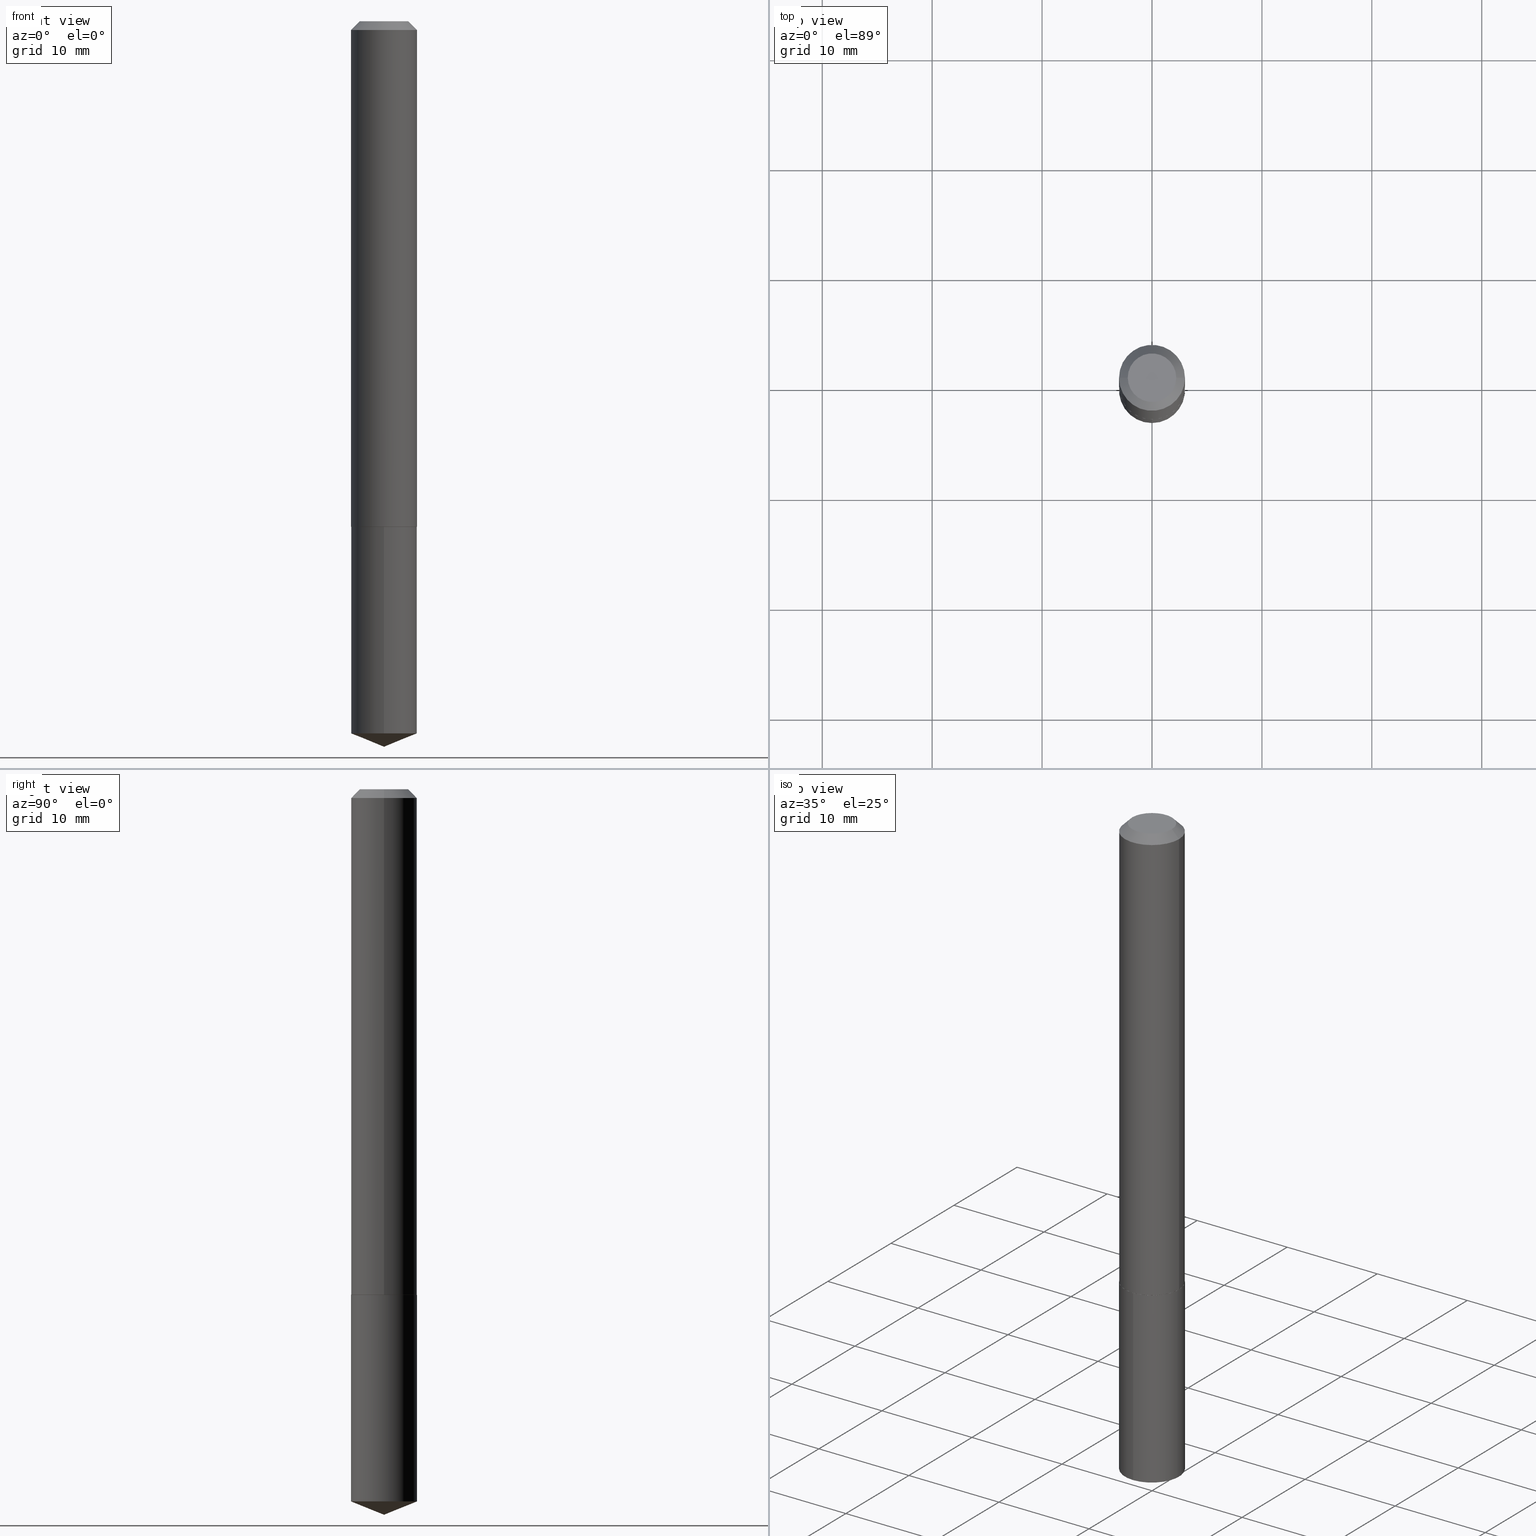
[diagram: canonical four-view strip — front | top / right | iso, engineering-drawing reading convention]
A machine part, canonical four-view strip (front | top / right | iso — engineering-drawing reading convention). The complete STEP part file that produces these views, byte-faithful:
ISO-10303-21;
HEADER;
FILE_DESCRIPTION (( 'STEP AP203' ),
    '1' );
FILE_NAME ('69150.STEP',
    '2024-04-23T14:45:25',
    ( '' ),
    ( '' ),
    'SwSTEP 2.0',
    'SolidWorks 2023',
    '' );
FILE_SCHEMA (( 'CONFIG_CONTROL_DESIGN' ));
ENDSEC;

DATA;
#1 = CARTESIAN_POINT ( 'NONE',  ( -0.1181000000000001215, 8.391509709326791832E-16, -5.809262341591049389E-30 ) ) ;
#2 = ORIENTED_EDGE ( 'NONE', *, *, #49, .T. ) ;
#3 = LOCAL_TIME ( 10, 45, 25.00000000000000000, #340 ) ;
#4 = APPLICATION_PROTOCOL_DEFINITION ( 'international standard', 'config_control_design', 1994, #110 ) ;
#5 = CARTESIAN_POINT ( 'NONE',  ( 6.317120417036399329E-29, -9.125517191193927312E-15, -2.598399999999999821 ) ) ;
#6 = ORIENTED_EDGE ( 'NONE', *, *, #22, .T. ) ;
#7 = CALENDAR_DATE ( 2024, 23, 4 ) ;
#8 = CARTESIAN_POINT ( 'NONE',  ( 6.317120417036399329E-29, -9.125517191193927312E-15, -2.598399999999999821 ) ) ;
#9 = CARTESIAN_POINT ( 'NONE',  ( 8.391509709327404185E-16, 0.1180999999999910732, -2.550684502728868264 ) ) ;
#10 = CARTESIAN_POINT ( 'NONE',  ( 0.1181000000000002326, -7.146014856210262754E-15, -1.810499999999999776 ) ) ;
#11 = CIRCLE ( 'NONE', #382, 0.1180999999999999966 ) ;
#12 = CARTESIAN_POINT ( 'NONE',  ( 4.427521273598188876E-29, -6.321326963975513703E-15, -1.810499999999999776 ) ) ;
#13 = DIRECTION ( 'NONE',  ( -0.7071067811865455743, 2.468850131082236945E-15, -0.7071067811865493491 ) ) ;
#14 = CARTESIAN_POINT ( 'NONE',  ( 4.428744008001282238E-29, -6.323072704644935995E-15, -1.810999999999999943 ) ) ;
#15 = FACE_OUTER_BOUND ( 'NONE', #241, .T. ) ;
#16 = ADVANCED_FACE ( 'NONE', ( #330 ), #78, .T. ) ;
#17 = DIRECTION ( 'NONE',  ( -1.000000000000000000, 6.982962677686266711E-15, 0.000000000000000000 ) ) ;
#18 = APPROVAL_PERSON_ORGANIZATION ( #92, #141, #308 ) ;
#19 = VECTOR ( 'NONE', #218, 39.37007874015748143 ) ;
#20 = ORIENTED_EDGE ( 'NONE', *, *, #208, .T. ) ;
#21 = CC_DESIGN_APPROVAL ( #25, ( #379 ) ) ;
#22 = EDGE_CURVE ( 'NONE', #328, #388, #305, .T. ) ;
#23 = EDGE_LOOP ( 'NONE', ( #207, #381, #151, #290 ) ) ;
#24 = AXIS2_PLACEMENT_3D ( 'NONE', #344, #278, #316 ) ;
#25 = APPROVAL ( #209, 'UNSPECIFIED' ) ;
#26 = FACE_OUTER_BOUND ( 'NONE', #125, .T. ) ;
#27 = VERTEX_POINT ( 'NONE', #9 ) ;
#28 = PERSON_AND_ORGANIZATION ( #350, #74 ) ;
#29 = DIRECTION ( 'NONE',  ( -6.982962677686266711E-15, -1.000000000000000000, 3.498761904101851224E-15 ) ) ;
#30 = VERTEX_POINT ( 'NONE', #127 ) ;
#31 = DATE_AND_TIME ( #115, #137 ) ;
#32 = DIRECTION ( 'NONE',  ( -2.445468806185136597E-29, 3.491481338843145583E-15, 1.000000000000000000 ) ) ;
#33 = EDGE_LOOP ( 'NONE', ( #170, #97, #112, #302 ) ) ;
#34 = CIRCLE ( 'NONE', #57, 0.1181000000000000105 ) ;
#35 = COORDINATED_UNIVERSAL_TIME_OFFSET ( 5, 0, .BEHIND. ) ;
#36 = CYLINDRICAL_SURFACE ( 'NONE', #338, 0.1180999999999999966 ) ;
#37 = ORIENTED_EDGE ( 'NONE', *, *, #319, .T. ) ;
#38 = LINE ( 'NONE', #104, #140 ) ;
#39 = DIRECTION ( 'NONE',  ( 1.000000000000000000, -6.982962677686266711E-15, 4.875959881687004012E-29 ) ) ;
#40 = CYLINDRICAL_SURFACE ( 'NONE', #336, 0.1181000000000001215 ) ;
#41 = DATE_AND_TIME ( #317, #3 ) ;
#42 = AXIS2_PLACEMENT_3D ( 'NONE', #120, #233, #116 ) ;
#43 = DIRECTION ( 'NONE',  ( -2.445468806185136597E-29, 3.491481338843145583E-15, 1.000000000000000000 ) ) ;
#44 = DIRECTION ( 'NONE',  ( -6.982962677686265922E-15, -1.000000000000000000, 4.626330217890369336E-15 ) ) ;
#45 = DIRECTION ( 'NONE',  ( -2.445468806185136597E-29, 3.491481338843145583E-15, 1.000000000000000000 ) ) ;
#46 = CIRCLE ( 'NONE', #181, 0.1176000000000002738 ) ;
#47 = ORIENTED_EDGE ( 'NONE', *, *, #319, .F. ) ;
#48 = ADVANCED_FACE ( 'NONE', ( #103 ), #220, .F. ) ;
#49 = EDGE_CURVE ( 'NONE', #259, #27, #224, .T. ) ;
#50 = CIRCLE ( 'NONE', #195, 0.1176000000000002738 ) ;
#51 = CONICAL_SURFACE ( 'NONE', #286, 0.1181000000000002326, 0.7853981633972434429 ) ;
#52 = DIRECTION ( 'NONE',  ( -2.445468806185136597E-29, 3.491481338843145583E-15, 1.000000000000000000 ) ) ;
#53 = EDGE_LOOP ( 'NONE', ( #260, #198 ) ) ;
#54 = SECURITY_CLASSIFICATION_LEVEL ( 'unclassified' ) ;
#55 = EDGE_LOOP ( 'NONE', ( #94, #91, #109, #47 ) ) ;
#56 = AXIS2_PLACEMENT_3D ( 'NONE', #76, #187, #17 ) ;
#57 = AXIS2_PLACEMENT_3D ( 'NONE', #150, #332, #239 ) ;
#58 = MANIFOLD_SOLID_BREP ( 'Body-Move/Copy2[2]', #247 ) ;
#59 = EDGE_CURVE ( 'NONE', #388, #366, #238, .T. ) ;
#60 = PERSON_AND_ORGANIZATION ( #350, #74 ) ;
#61 = DIRECTION ( 'NONE',  ( -2.431157795965363335E-29, 3.511975520009978246E-15, 1.000000000000000000 ) ) ;
#62 = ORIENTED_EDGE ( 'NONE', *, *, #313, .T. ) ;
#63 = CARTESIAN_POINT ( 'NONE',  ( 8.253766764526101525E-46, -1.178419146489205654E-31, -3.375126578450104991E-17 ) ) ;
#64 = CARTESIAN_POINT ( 'NONE',  ( 4.427521273598188876E-29, -6.321326963975513703E-15, -1.810499999999999776 ) ) ;
#65 = DIRECTION ( 'NONE',  ( 1.000000000000000000, -6.982962677686266711E-15, 0.000000000000000000 ) ) ;
#66 = ORIENTED_EDGE ( 'NONE', *, *, #111, .F. ) ;
#67 = COORDINATED_UNIVERSAL_TIME_OFFSET ( 5, 0, .BEHIND. ) ;
#68 = LENGTH_MEASURE_WITH_UNIT ( LENGTH_MEASURE( 0.02539999999999999897 ), #219 );
#69 = EDGE_CURVE ( 'NONE', #119, #294, #345, .T. ) ;
#70 = LINE ( 'NONE', #221, #154 ) ;
#71 = ADVANCED_FACE ( 'NONE', ( #315 ), #222, .F. ) ;
#72 = CARTESIAN_POINT ( 'NONE',  ( -0.1180999999999999966, -2.376066906974500838E-15, -0.03125000000000021511 ) ) ;
#73 = DIRECTION ( 'NONE',  ( 1.000000000000000000, -6.982962677686266711E-15, 0.000000000000000000 ) ) ;
#74 = ORGANIZATION ( 'UNSPECIFIED', 'UNSPECIFIED', '' ) ;
#75 = CARTESIAN_POINT ( 'NONE',  ( 7.642090019328603538E-31, -1.091087918388490390E-16, -0.03125000000000021511 ) ) ;
#76 = CARTESIAN_POINT ( 'NONE',  ( 7.642090019328603538E-31, -1.091087918388490390E-16, -0.03125000000000021511 ) ) ;
#77 = CARTESIAN_POINT ( 'NONE',  ( -0.1180999999999999966, 7.155791003958990633E-16, -0.03125000000000021511 ) ) ;
#78 = CONICAL_SURFACE ( 'NONE', #295, 0.1181000000000002326, 0.7853981633972434429 ) ;
#79 = ADVANCED_FACE ( 'NONE', ( #342 ), #226, .T. ) ;
#80 = AXIS2_PLACEMENT_3D ( 'NONE', #143, #61, #265 ) ;
#81 = DIRECTION ( 'NONE',  ( 1.000000000000000000, -6.982962677686266711E-15, 4.876176775795935793E-29 ) ) ;
#82 = DIRECTION ( 'NONE',  ( 1.000000000000000000, 0.000000000000000000, 0.000000000000000000 ) ) ;
#83 = DIRECTION ( 'NONE',  ( 1.000000000000000000, -6.982962677686269077E-15, 0.000000000000000000 ) ) ;
#84 = ORIENTED_EDGE ( 'NONE', *, *, #194, .T. ) ;
#85 = APPROVAL_STATUS ( 'not_yet_approved' ) ;
#86 = CYLINDRICAL_SURFACE ( 'NONE', #42, 0.1180999999999999966 ) ;
#87 = ORIENTED_EDGE ( 'NONE', *, *, #59, .T. ) ;
#88 = AXIS2_PLACEMENT_3D ( 'NONE', #63, #43, #39 ) ;
#89 = PERSON_AND_ORGANIZATION_ROLE ( 'design_owner' ) ;
#90 = DIRECTION ( 'NONE',  ( -2.431157795965363335E-29, 3.511975520009978246E-15, 1.000000000000000000 ) ) ;
#91 = ORIENTED_EDGE ( 'NONE', *, *, #148, .T. ) ;
#92 = PERSON_AND_ORGANIZATION ( #350, #74 ) ;
#93 = FACE_OUTER_BOUND ( 'NONE', #23, .T. ) ;
#94 = ORIENTED_EDGE ( 'NONE', *, *, #374, .T. ) ;
#95 = LINE ( 'NONE', #77, #371 ) ;
#96 = ADVANCED_FACE ( 'NONE', ( #190 ), #40, .T. ) ;
#97 = ORIENTED_EDGE ( 'NONE', *, *, #208, .F. ) ;
#98 = EDGE_CURVE ( 'NONE', #30, #366, #389, .T. ) ;
#99 = LOCAL_TIME ( 10, 45, 25.00000000000000000, #35 ) ;
#100 =( NAMED_UNIT ( * ) PLANE_ANGLE_UNIT ( ) SI_UNIT ( $, .RADIAN. ) );
#101 = CARTESIAN_POINT ( 'NONE',  ( 6.369409423247695454E-29, -9.051287267007661357E-15, -2.598399999999999821 ) ) ;
#102 = CARTESIAN_POINT ( 'NONE',  ( 8.391509709327224719E-16, 0.1180999999999936823, -1.811000000000000387 ) ) ;
#103 = FACE_OUTER_BOUND ( 'NONE', #269, .T. ) ;
#104 = CARTESIAN_POINT ( 'NONE',  ( 0.1181000000000001215, -8.246878922347489529E-16, 5.758764772215006046E-30 ) ) ;
#105 = DIRECTION ( 'NONE',  ( 1.000000000000000000, -6.982962677686266711E-15, 0.000000000000000000 ) ) ;
#106 = CIRCLE ( 'NONE', #88, 0.08684999999999999665 ) ;
#107 = EDGE_CURVE ( 'NONE', #328, #30, #46, .T. ) ;
#108 = VECTOR ( 'NONE', #118, 39.37007874015748143 ) ;
#109 = ORIENTED_EDGE ( 'NONE', *, *, #69, .F. ) ;
#110 = APPLICATION_CONTEXT ( 'configuration controlled 3d designs of mechanical parts and assemblies' ) ;
#111 = EDGE_CURVE ( 'NONE', #259, #292, #271, .T. ) ;
#112 = ORIENTED_EDGE ( 'NONE', *, *, #268, .T. ) ;
#113 = CC_DESIGN_PERSON_AND_ORGANIZATION_ASSIGNMENT ( #156, #298, ( #172 ) ) ;
#114 = CARTESIAN_POINT ( 'NONE',  ( 7.642090019328603538E-31, -1.091087918388490390E-16, -0.03125000000000021511 ) ) ;
#115 = CALENDAR_DATE ( 2024, 23, 4 ) ;
#116 = DIRECTION ( 'NONE',  ( -6.982962677686265922E-15, -1.000000000000000000, 4.626330217890369336E-15 ) ) ;
#117 = VERTEX_POINT ( 'NONE', #267 ) ;
#118 = DIRECTION ( 'NONE',  ( -6.474490251793173107E-15, -0.9271838545667855369, 0.3746065934159166777 ) ) ;
#119 = VERTEX_POINT ( 'NONE', #329 ) ;
#120 = CARTESIAN_POINT ( 'NONE',  ( 4.428744008001282238E-29, -6.323072704644935995E-15, -1.810999999999999943 ) ) ;
#121 = ORIENTED_EDGE ( 'NONE', *, *, #107, .T. ) ;
#122 = AXIS2_PLACEMENT_3D ( 'NONE', #343, #281, #105 ) ;
#123 = SECURITY_CLASSIFICATION ( '', '', #54 ) ;
#124 = DIRECTION ( 'NONE',  ( -2.445468806185136597E-29, 3.491481338843145583E-15, 1.000000000000000000 ) ) ;
#125 = EDGE_LOOP ( 'NONE', ( #370, #6, #246, #270 ) ) ;
#126 = CARTESIAN_POINT ( 'NONE',  ( 4.428744008001282238E-29, -6.323072704644935995E-15, -1.810999999999999943 ) ) ;
#127 = CARTESIAN_POINT ( 'NONE',  ( 0.1176000000000002738, -7.144269115540843617E-15, -1.810999999999999943 ) ) ;
#128 = DIRECTION ( 'NONE',  ( 1.000000000000000000, -6.982962677686266711E-15, 0.000000000000000000 ) ) ;
#129 = AXIS2_PLACEMENT_3D ( 'NONE', #133, #45, #73 ) ;
#130 = APPROVAL_PERSON_ORGANIZATION ( #60, #25, #214 ) ;
#131 = LINE ( 'NONE', #102, #258 ) ;
#132 = DIRECTION ( 'NONE',  ( -6.982962677686266711E-15, -1.000000000000000000, 3.498761904101851224E-15 ) ) ;
#133 = CARTESIAN_POINT ( 'NONE',  ( 7.642090019328603538E-31, -1.091087918388490390E-16, -0.03125000000000021511 ) ) ;
#134 = CARTESIAN_POINT ( 'NONE',  ( -8.937183620035965919E-28, 1.291783505271975782E-13, 36.77167874015748339 ) ) ;
#135 = ADVANCED_BREP_SHAPE_REPRESENTATION ( '69150', ( #184, #58, #216 ), #254 ) ;
#136 = AXIS2_PLACEMENT_3D ( 'NONE', #14, #284, #346 ) ;
#137 = LOCAL_TIME ( 10, 45, 25.00000000000000000, #335 ) ;
#138 = EDGE_CURVE ( 'NONE', #30, #328, #50, .T. ) ;
#139 = ADVANCED_FACE ( 'NONE', ( #243 ), #384, .T. ) ;
#140 = VECTOR ( 'NONE', #160, 39.37007874015748143 ) ;
#141 = APPROVAL ( #85, 'UNSPECIFIED' ) ;
#142 = DATE_AND_TIME ( #204, #272 ) ;
#143 = CARTESIAN_POINT ( 'NONE',  ( 6.227033753365331904E-29, -8.920826570759473542E-15, -2.550684502728867376 ) ) ;
#144 = CONICAL_SURFACE ( 'NONE', #223, 97.44436430772776703, 1.186823891356142635 ) ;
#145 = VERTEX_POINT ( 'NONE', #323 ) ;
#146 = CARTESIAN_POINT ( 'NONE',  ( 0.000000000000000000, 0.000000000000000000, 0.000000000000000000 ) ) ;
#147 = ORIENTED_EDGE ( 'NONE', *, *, #98, .T. ) ;
#148 = EDGE_CURVE ( 'NONE', #388, #294, #365, .T. ) ;
#149 = DATE_AND_TIME ( #7, #99 ) ;
#150 = CARTESIAN_POINT ( 'NONE',  ( 6.227033753365331904E-29, -8.920826570759473542E-15, -2.550684502728867376 ) ) ;
#151 = ORIENTED_EDGE ( 'NONE', *, *, #261, .F. ) ;
#152 = PERSON_AND_ORGANIZATION_ROLE ( 'creator' ) ;
#153 = ORIENTED_EDGE ( 'NONE', *, *, #334, .T. ) ;
#154 = VECTOR ( 'NONE', #310, 39.37007874015748854 ) ;
#155 = ADVANCED_FACE ( 'NONE', ( #26 ), #51, .T. ) ;
#156 = PERSON_AND_ORGANIZATION ( #350, #74 ) ;
#157 = CARTESIAN_POINT ( 'NONE',  ( -0.1181000000000002326, -5.482175993042833139E-15, -1.810499999999999776 ) ) ;
#158 = CC_DESIGN_DATE_AND_TIME_ASSIGNMENT ( #149, #263, ( #123 ) ) ;
#159 = SHAPE_DEFINITION_REPRESENTATION ( #320, #135 ) ;
#160 = DIRECTION ( 'NONE',  ( -2.445468806185136877E-29, 3.491481338843145188E-15, 1.000000000000000000 ) ) ;
#161 = CYLINDRICAL_SURFACE ( 'NONE', #249, 0.1181000000000001215 ) ;
#162 = CIRCLE ( 'NONE', #227, 0.1180999999999999966 ) ;
#163 = CARTESIAN_POINT ( 'NONE',  ( -8.246878922347036920E-16, -0.1181000000000063110, -1.810999999999999277 ) ) ;
#164 = CIRCLE ( 'NONE', #206, 0.08684999999999999665 ) ;
#165 = ADVANCED_FACE ( 'NONE', ( #93 ), #86, .T. ) ;
#166 = ORIENTED_EDGE ( 'NONE', *, *, #307, .F. ) ;
#167 = EDGE_CURVE ( 'NONE', #292, #27, #34, .T. ) ;
#168 = AXIS2_PLACEMENT_3D ( 'NONE', #126, #188, #318 ) ;
#169 = DIRECTION ( 'NONE',  ( -2.445468806185136597E-29, 3.491481338843145583E-15, 1.000000000000000000 ) ) ;
#170 = ORIENTED_EDGE ( 'NONE', *, *, #334, .F. ) ;
#171 = CARTESIAN_POINT ( 'NONE',  ( -8.937183620035965919E-28, 1.291783505271975782E-13, 36.77167874015748339 ) ) ;
#172 = PRODUCT_DEFINITION_FORMATION_WITH_SPECIFIED_SOURCE ( 'ANY', '', #191, .NOT_KNOWN. ) ;
#173 = ORIENTED_EDGE ( 'NONE', *, *, #22, .F. ) ;
#174 = APPROVAL_DATE_TIME ( #31, #25 ) ;
#175 = CARTESIAN_POINT ( 'NONE',  ( 4.428744008001282238E-29, -6.323072704644935995E-15, -1.810999999999999943 ) ) ;
#176 = ORIENTED_EDGE ( 'NONE', *, *, #268, .F. ) ;
#177 = CARTESIAN_POINT ( 'NONE',  ( 0.000000000000000000, 0.000000000000000000, 0.000000000000000000 ) ) ;
#178 = DIRECTION ( 'NONE',  ( -2.445468806185136597E-29, 3.491481338843145583E-15, 1.000000000000000000 ) ) ;
#179 = DATE_AND_TIME ( #386, #240 ) ;
#180 = ORIENTED_EDGE ( 'NONE', *, *, #69, .T. ) ;
#181 = AXIS2_PLACEMENT_3D ( 'NONE', #201, #32, #387 ) ;
#182 = CC_DESIGN_SECURITY_CLASSIFICATION ( #123, ( #172 ) ) ;
#183 =( CONVERSION_BASED_UNIT ( 'INCH', #68 ) LENGTH_UNIT ( ) NAMED_UNIT ( #378 ) );
#184 = MANIFOLD_SOLID_BREP ( 'Body-Move/Copy2[1]', #325 ) ;
#185 = ADVANCED_FACE ( 'NONE', ( #296 ), #36, .T. ) ;
#186 = FACE_OUTER_BOUND ( 'NONE', #357, .T. ) ;
#187 = DIRECTION ( 'NONE',  ( 2.445468806185136597E-29, -3.491481338843145583E-15, -1.000000000000000000 ) ) ;
#188 = DIRECTION ( 'NONE',  ( -2.431157795965363335E-29, 3.511975520009978246E-15, 1.000000000000000000 ) ) ;
#189 = PLANE ( 'NONE',  #24 ) ;
#190 = FACE_OUTER_BOUND ( 'NONE', #55, .T. ) ;
#191 = PRODUCT ( '69150', '69150', '', ( #200 ) ) ;
#192 = CONICAL_SURFACE ( 'NONE', #196, 0.1180999999999999966, 0.7853981633974456145 ) ;
#193 = EDGE_CURVE ( 'NONE', #294, #119, #11, .T. ) ;
#194 = EDGE_CURVE ( 'NONE', #292, #363, #230, .T. ) ;
#195 = AXIS2_PLACEMENT_3D ( 'NONE', #175, #124, #83 ) ;
#196 = AXIS2_PLACEMENT_3D ( 'NONE', #75, #252, #375 ) ;
#197 = ORIENTED_EDGE ( 'NONE', *, *, #59, .F. ) ;
#198 = ORIENTED_EDGE ( 'NONE', *, *, #107, .F. ) ;
#199 = EDGE_CURVE ( 'NONE', #27, #292, #353, .T. ) ;
#200 = MECHANICAL_CONTEXT ( 'NONE', #367, 'mechanical' ) ;
#201 = CARTESIAN_POINT ( 'NONE',  ( 4.428744008001282238E-29, -6.323072704644935995E-15, -1.810999999999999943 ) ) ;
#202 = ORIENTED_EDGE ( 'NONE', *, *, #199, .F. ) ;
#203 = CC_DESIGN_PERSON_AND_ORGANIZATION_ASSIGNMENT ( #235, #152, ( #379 ) ) ;
#204 = CALENDAR_DATE ( 2024, 23, 4 ) ;
#205 = DIRECTION ( 'NONE',  ( -2.445468806185136597E-29, 3.491481338843145583E-15, 1.000000000000000000 ) ) ;
#206 = AXIS2_PLACEMENT_3D ( 'NONE', #348, #341, #275 ) ;
#207 = ORIENTED_EDGE ( 'NONE', *, *, #167, .T. ) ;
#208 = EDGE_CURVE ( 'NONE', #145, #273, #106, .T. ) ;
#209 = APPROVAL_STATUS ( 'not_yet_approved' ) ;
#210 = DIRECTION ( 'NONE',  ( -2.431157795965363335E-29, 3.511975520009978246E-15, 1.000000000000000000 ) ) ;
#211 = ORIENTED_EDGE ( 'NONE', *, *, #167, .F. ) ;
#212 = PERSON_AND_ORGANIZATION_ROLE ( 'design_supplier' ) ;
#213 = EDGE_LOOP ( 'NONE', ( #244, #351, #84, #276 ) ) ;
#214 = APPROVAL_ROLE ( '' ) ;
#215 = CARTESIAN_POINT ( 'NONE',  ( 4.428744008001282238E-29, -6.323072704644935995E-15, -1.810999999999999943 ) ) ;
#216 = AXIS2_PLACEMENT_3D ( 'NONE', #177, #364, #82 ) ;
#217 = CARTESIAN_POINT ( 'NONE',  ( 0.08684999999999999665, -7.575839282410623033E-16, -3.375126578449627977E-17 ) ) ;
#218 = DIRECTION ( 'NONE',  ( 6.588037525764784980E-15, 0.9271838545667882014, 0.3746065934159101274 ) ) ;
#219 =( LENGTH_UNIT ( ) NAMED_UNIT ( * ) SI_UNIT ( $, .METRE. ) );
#220 = PLANE ( 'NONE',  #314 ) ;
#221 = CARTESIAN_POINT ( 'NONE',  ( 0.1180999999999999966, -9.193336053756670343E-16, -0.03125000000000021511 ) ) ;
#222 = PLANE ( 'NONE',  #136 ) ;
#223 = AXIS2_PLACEMENT_3D ( 'NONE', #134, #312, #132 ) ;
#224 = LINE ( 'NONE', #101, #19 ) ;
#225 = CC_DESIGN_PERSON_AND_ORGANIZATION_ASSIGNMENT ( #303, #212, ( #172 ) ) ;
#226 = CONICAL_SURFACE ( 'NONE', #56, 0.1180999999999999966, 0.7853981633974456145 ) ;
#227 = AXIS2_PLACEMENT_3D ( 'NONE', #215, #337, #44 ) ;
#228 = EDGE_LOOP ( 'NONE', ( #229, #297, #202 ) ) ;
#229 = ORIENTED_EDGE ( 'NONE', *, *, #49, .F. ) ;
#230 = LINE ( 'NONE', #354, #326 ) ;
#231 = EDGE_CURVE ( 'NONE', #27, #117, #131, .T. ) ;
#232 = PERSON_AND_ORGANIZATION ( #350, #74 ) ;
#233 = DIRECTION ( 'NONE',  ( -2.431157795965363335E-29, 3.511975520009978246E-15, 1.000000000000000000 ) ) ;
#234 = EDGE_LOOP ( 'NONE', ( #173, #121, #147, #197 ) ) ;
#235 = PERSON_AND_ORGANIZATION ( #350, #74 ) ;
#236 = CARTESIAN_POINT ( 'NONE',  ( 4.427521273598188876E-29, -6.321326963975513703E-15, -1.810499999999999776 ) ) ;
#237 = ORIENTED_EDGE ( 'NONE', *, *, #261, .T. ) ;
#238 = CIRCLE ( 'NONE', #122, 0.1181000000000002326 ) ;
#239 = DIRECTION ( 'NONE',  ( -6.982962677686265922E-15, -1.000000000000000000, 4.626330217890369336E-15 ) ) ;
#240 = LOCAL_TIME ( 10, 45, 25.00000000000000000, #331 ) ;
#241 = EDGE_LOOP ( 'NONE', ( #333, #87, #37, #266 ) ) ;
#242 = APPROVAL_DATE_TIME ( #142, #141 ) ;
#243 = FACE_OUTER_BOUND ( 'NONE', #228, .T. ) ;
#244 = ORIENTED_EDGE ( 'NONE', *, *, #231, .F. ) ;
#245 = CARTESIAN_POINT ( 'NONE',  ( -0.1176000000000002738, -5.484825220216945129E-15, -1.810999999999999943 ) ) ;
#246 = ORIENTED_EDGE ( 'NONE', *, *, #374, .F. ) ;
#247 = CLOSED_SHELL ( 'NONE', ( #306, #96, #155, #71, #16, #377, #79, #48 ) ) ;
#248 = CARTESIAN_POINT ( 'NONE',  ( 4.126883382263050762E-46, -5.892095732446028268E-32, -1.687563289225052496E-17 ) ) ;
#249 = AXIS2_PLACEMENT_3D ( 'NONE', #253, #250, #376 ) ;
#250 = DIRECTION ( 'NONE',  ( -2.445468806185136597E-29, 3.491481338843145583E-15, 1.000000000000000000 ) ) ;
#251 = APPROVAL_DATE_TIME ( #41, #339 ) ;
#252 = DIRECTION ( 'NONE',  ( 2.445468806185136597E-29, -3.491481338843145583E-15, -1.000000000000000000 ) ) ;
#253 = CARTESIAN_POINT ( 'NONE',  ( 0.000000000000000000, 0.000000000000000000, 0.000000000000000000 ) ) ;
#254 =( GEOMETRIC_REPRESENTATION_CONTEXT ( 3 ) GLOBAL_UNCERTAINTY_ASSIGNED_CONTEXT ( ( #255 ) ) GLOBAL_UNIT_ASSIGNED_CONTEXT ( ( #183, #100, #287 ) ) REPRESENTATION_CONTEXT ( 'NONE', 'WORKASPACE' ) );
#255 = UNCERTAINTY_MEASURE_WITH_UNIT (LENGTH_MEASURE( 1.000000000000000082E-05 ), #183, 'distance_accuracy_value', 'NONE');
#256 = DESIGN_CONTEXT ( 'detailed design', #110, 'design' ) ;
#257 = VECTOR ( 'NONE', #324, 39.37007874015748143 ) ;
#258 = VECTOR ( 'NONE', #280, 39.37007874015748143 ) ;
#259 = VERTEX_POINT ( 'NONE', #8 ) ;
#260 = ORIENTED_EDGE ( 'NONE', *, *, #138, .F. ) ;
#261 = EDGE_CURVE ( 'NONE', #363, #117, #279, .T. ) ;
#262 = AXIS2_PLACEMENT_3D ( 'NONE', #171, #90, #29 ) ;
#263 = DATE_TIME_ROLE ( 'classification_date' ) ;
#264 = CC_DESIGN_APPROVAL ( #339, ( #123 ) ) ;
#265 = DIRECTION ( 'NONE',  ( -6.982962677686265922E-15, -1.000000000000000000, 4.626330217890369336E-15 ) ) ;
#266 = ORIENTED_EDGE ( 'NONE', *, *, #193, .F. ) ;
#267 = CARTESIAN_POINT ( 'NONE',  ( 8.391509709327405171E-16, 0.1180999999999936684, -1.811000000000000387 ) ) ;
#268 = EDGE_CURVE ( 'NONE', #145, #294, #95, .T. ) ;
#269 = EDGE_LOOP ( 'NONE', ( #20, #390 ) ) ;
#270 = ORIENTED_EDGE ( 'NONE', *, *, #98, .F. ) ;
#271 = LINE ( 'NONE', #5, #108 ) ;
#272 = LOCAL_TIME ( 10, 45, 25.00000000000000000, #67 ) ;
#273 = VERTEX_POINT ( 'NONE', #217 ) ;
#274 = PERSON_AND_ORGANIZATION_ROLE ( 'classification_officer' ) ;
#275 = DIRECTION ( 'NONE',  ( 1.000000000000000000, -6.982962677686266711E-15, 4.875959881687004012E-29 ) ) ;
#276 = ORIENTED_EDGE ( 'NONE', *, *, #313, .F. ) ;
#277 = FACE_OUTER_BOUND ( 'NONE', #361, .T. ) ;
#278 = DIRECTION ( 'NONE',  ( 2.431157795965362774E-29, -3.511975520009978640E-15, -1.000000000000000000 ) ) ;
#279 = CIRCLE ( 'NONE', #168, 0.1180999999999999966 ) ;
#280 = DIRECTION ( 'NONE',  ( -2.431157795965363055E-29, 3.511975520009978640E-15, 1.000000000000000000 ) ) ;
#281 = DIRECTION ( 'NONE',  ( -2.445468806185136597E-29, 3.491481338843145583E-15, 1.000000000000000000 ) ) ;
#282 = DIRECTION ( 'NONE',  ( -2.445468806185136597E-29, 3.491481338843145583E-15, 1.000000000000000000 ) ) ;
#283 = DIRECTION ( 'NONE',  ( 2.438088387897960049E-29, -3.491481338843145188E-15, -1.000000000000000000 ) ) ;
#284 = DIRECTION ( 'NONE',  ( -2.438088387897960049E-29, 3.491481338843145188E-15, 1.000000000000000000 ) ) ;
#285 = VECTOR ( 'NONE', #304, 39.37007874015748143 ) ;
#286 = AXIS2_PLACEMENT_3D ( 'NONE', #236, #169, #293 ) ;
#287 =( NAMED_UNIT ( * ) SI_UNIT ( $, .STERADIAN. ) SOLID_ANGLE_UNIT ( ) );
#288 = PRODUCT_RELATED_PRODUCT_CATEGORY ( 'detail', '', ( #191 ) ) ;
#289 = ADVANCED_FACE ( 'NONE', ( #277 ), #144, .T. ) ;
#290 = ORIENTED_EDGE ( 'NONE', *, *, #194, .F. ) ;
#291 = CC_DESIGN_APPROVAL ( #141, ( #172 ) ) ;
#292 = VERTEX_POINT ( 'NONE', #309 ) ;
#293 = DIRECTION ( 'NONE',  ( 1.000000000000000000, -6.982962677686266711E-15, 0.000000000000000000 ) ) ;
#294 = VERTEX_POINT ( 'NONE', #72 ) ;
#295 = AXIS2_PLACEMENT_3D ( 'NONE', #64, #178, #321 ) ;
#296 = FACE_OUTER_BOUND ( 'NONE', #213, .T. ) ;
#297 = ORIENTED_EDGE ( 'NONE', *, *, #111, .T. ) ;
#298 = PERSON_AND_ORGANIZATION_ROLE ( 'creator' ) ;
#299 = CARTESIAN_POINT ( 'NONE',  ( 0.1181000000000002326, -7.146014856210262754E-15, -1.810499999999999776 ) ) ;
#300 = CC_DESIGN_DATE_AND_TIME_ASSIGNMENT ( #179, #359, ( #379 ) ) ;
#301 = EDGE_LOOP ( 'NONE', ( #166, #153, #180, #176 ) ) ;
#302 = ORIENTED_EDGE ( 'NONE', *, *, #193, .T. ) ;
#303 = PERSON_AND_ORGANIZATION ( #350, #74 ) ;
#304 = DIRECTION ( 'NONE',  ( -2.445468806185136877E-29, 3.491481338843145188E-15, 1.000000000000000000 ) ) ;
#305 = LINE ( 'NONE', #157, #257 ) ;
#306 = ADVANCED_FACE ( 'NONE', ( #368 ), #192, .T. ) ;
#307 = EDGE_CURVE ( 'NONE', #273, #145, #164, .T. ) ;
#308 = APPROVAL_ROLE ( '' ) ;
#309 = CARTESIAN_POINT ( 'NONE',  ( -8.246878922346858440E-16, -0.1181000000000088923, -2.550684502728866931 ) ) ;
#310 = DIRECTION ( 'NONE',  ( 0.7071067811865455743, -7.319954787623248157E-15, -0.7071067811865493491 ) ) ;
#311 = APPROVAL_ROLE ( '' ) ;
#312 = DIRECTION ( 'NONE',  ( -2.431157795965363335E-29, 3.511975520009978246E-15, 1.000000000000000000 ) ) ;
#313 = EDGE_CURVE ( 'NONE', #117, #363, #162, .T. ) ;
#314 = AXIS2_PLACEMENT_3D ( 'NONE', #248, #283, #373 ) ;
#315 = FACE_OUTER_BOUND ( 'NONE', #53, .T. ) ;
#316 = DIRECTION ( 'NONE',  ( 6.982962677686265922E-15, 1.000000000000000000, -3.511975520009978640E-15 ) ) ;
#317 = CALENDAR_DATE ( 2024, 23, 4 ) ;
#318 = DIRECTION ( 'NONE',  ( -6.982962677686265922E-15, -1.000000000000000000, 4.626330217890369336E-15 ) ) ;
#319 = EDGE_CURVE ( 'NONE', #366, #119, #38, .T. ) ;
#320 = PRODUCT_DEFINITION_SHAPE ( 'NONE', 'NONE',  #379 ) ;
#321 = DIRECTION ( 'NONE',  ( 1.000000000000000000, -6.982962677686266711E-15, 0.000000000000000000 ) ) ;
#322 = PERSON_AND_ORGANIZATION ( #350, #74 ) ;
#323 = CARTESIAN_POINT ( 'NONE',  ( -0.08684999999999999665, 6.610247044764755977E-16, -3.375126578450548109E-17 ) ) ;
#324 = DIRECTION ( 'NONE',  ( -0.7071067811864026886, 7.493145998869830357E-15, 0.7071067811866923458 ) ) ;
#325 = CLOSED_SHELL ( 'NONE', ( #165, #289, #139, #185, #352 ) ) ;
#326 = VECTOR ( 'NONE', #327, 39.37007874015748143 ) ;
#327 = DIRECTION ( 'NONE',  ( -2.431157795965363055E-29, 3.511975520009978640E-15, 1.000000000000000000 ) ) ;
#328 = VERTEX_POINT ( 'NONE', #245 ) ;
#329 = CARTESIAN_POINT ( 'NONE',  ( 0.1180999999999999966, -9.337966840735971660E-16, -0.03125000000000021511 ) ) ;
#330 = FACE_OUTER_BOUND ( 'NONE', #234, .T. ) ;
#331 = COORDINATED_UNIVERSAL_TIME_OFFSET ( 5, 0, .BEHIND. ) ;
#332 = DIRECTION ( 'NONE',  ( -2.431157795965363335E-29, 3.511975520009978246E-15, 1.000000000000000000 ) ) ;
#333 = ORIENTED_EDGE ( 'NONE', *, *, #148, .F. ) ;
#334 = EDGE_CURVE ( 'NONE', #273, #119, #70, .T. ) ;
#335 = COORDINATED_UNIVERSAL_TIME_OFFSET ( 5, 0, .BEHIND. ) ;
#336 = AXIS2_PLACEMENT_3D ( 'NONE', #146, #52, #81 ) ;
#337 = DIRECTION ( 'NONE',  ( -2.431157795965363335E-29, 3.511975520009978246E-15, 1.000000000000000000 ) ) ;
#338 = AXIS2_PLACEMENT_3D ( 'NONE', #360, #210, #356 ) ;
#339 = APPROVAL ( #355, 'UNSPECIFIED' ) ;
#340 = COORDINATED_UNIVERSAL_TIME_OFFSET ( 5, 0, .BEHIND. ) ;
#341 = DIRECTION ( 'NONE',  ( -2.445468806185136597E-29, 3.491481338843145583E-15, 1.000000000000000000 ) ) ;
#342 = FACE_OUTER_BOUND ( 'NONE', #33, .T. ) ;
#343 = CARTESIAN_POINT ( 'NONE',  ( 4.427521273598188876E-29, -6.321326963975513703E-15, -1.810499999999999776 ) ) ;
#344 = CARTESIAN_POINT ( 'NONE',  ( 4.428744008001282238E-29, -6.323072704644935995E-15, -1.810999999999999943 ) ) ;
#345 = CIRCLE ( 'NONE', #129, 0.1180999999999999966 ) ;
#346 = DIRECTION ( 'NONE',  ( 1.000000000000000000, -6.982962677686265922E-15, 4.876176775795935793E-29 ) ) ;
#347 = APPROVAL_PERSON_ORGANIZATION ( #232, #339, #311 ) ;
#348 = CARTESIAN_POINT ( 'NONE',  ( 8.253766764526101525E-46, -1.178419146489205654E-31, -3.375126578450104991E-17 ) ) ;
#349 = CIRCLE ( 'NONE', #385, 0.1181000000000002326 ) ;
#350 = PERSON ( 'UNSPECIFIED', 'UNSPECIFIED', 'UNSPECIFIED', ('UNSPECIFIED'), ('UNSPECIFIED'), ('UNSPECIFIED') ) ;
#351 = ORIENTED_EDGE ( 'NONE', *, *, #199, .T. ) ;
#352 = ADVANCED_FACE ( 'NONE', ( #186 ), #189, .F. ) ;
#353 = CIRCLE ( 'NONE', #80, 0.1181000000000000105 ) ;
#354 = CARTESIAN_POINT ( 'NONE',  ( -8.246878922347036920E-16, -0.1181000000000063110, -1.810999999999999277 ) ) ;
#355 = APPROVAL_STATUS ( 'not_yet_approved' ) ;
#356 = DIRECTION ( 'NONE',  ( -6.982962677686265922E-15, -1.000000000000000000, 4.626330217890369336E-15 ) ) ;
#357 = EDGE_LOOP ( 'NONE', ( #237, #62 ) ) ;
#358 = CC_DESIGN_PERSON_AND_ORGANIZATION_ASSIGNMENT ( #322, #274, ( #123 ) ) ;
#359 = DATE_TIME_ROLE ( 'creation_date' ) ;
#360 = CARTESIAN_POINT ( 'NONE',  ( 4.428744008001282238E-29, -6.323072704644935995E-15, -1.810999999999999943 ) ) ;
#361 = EDGE_LOOP ( 'NONE', ( #66, #2, #211 ) ) ;
#362 = APPLICATION_PROTOCOL_DEFINITION ( 'international standard', 'config_control_design', 1994, #367 ) ;
#363 = VERTEX_POINT ( 'NONE', #163 ) ;
#364 = DIRECTION ( 'NONE',  ( 0.000000000000000000, 0.000000000000000000, 1.000000000000000000 ) ) ;
#365 = LINE ( 'NONE', #1, #285 ) ;
#366 = VERTEX_POINT ( 'NONE', #10 ) ;
#367 = APPLICATION_CONTEXT ( 'configuration controlled 3d designs of mechanical parts and assemblies' ) ;
#368 = FACE_OUTER_BOUND ( 'NONE', #301, .T. ) ;
#369 = CC_DESIGN_PERSON_AND_ORGANIZATION_ASSIGNMENT ( #28, #89, ( #191 ) ) ;
#370 = ORIENTED_EDGE ( 'NONE', *, *, #138, .T. ) ;
#371 = VECTOR ( 'NONE', #13, 39.37007874015748854 ) ;
#372 = CARTESIAN_POINT ( 'NONE',  ( -0.1181000000000002326, -5.482175993042833139E-15, -1.810499999999999776 ) ) ;
#373 = DIRECTION ( 'NONE',  ( -1.000000000000000000, 6.982962677686265922E-15, -4.876176775795935793E-29 ) ) ;
#374 = EDGE_CURVE ( 'NONE', #366, #388, #349, .T. ) ;
#375 = DIRECTION ( 'NONE',  ( -1.000000000000000000, 6.982962677686266711E-15, 0.000000000000000000 ) ) ;
#376 = DIRECTION ( 'NONE',  ( 1.000000000000000000, -6.982962677686266711E-15, 4.876176775795935793E-29 ) ) ;
#377 = ADVANCED_FACE ( 'NONE', ( #15 ), #161, .T. ) ;
#378 = DIMENSIONAL_EXPONENTS ( 1.000000000000000000, 0.000000000000000000, 0.000000000000000000, 0.000000000000000000, 0.000000000000000000, 0.000000000000000000, 0.000000000000000000 ) ;
#379 = PRODUCT_DEFINITION ( 'UNKNOWN', '', #172, #256 ) ;
#380 = VECTOR ( 'NONE', #383, 39.37007874015748143 ) ;
#381 = ORIENTED_EDGE ( 'NONE', *, *, #231, .T. ) ;
#382 = AXIS2_PLACEMENT_3D ( 'NONE', #114, #205, #65 ) ;
#383 = DIRECTION ( 'NONE',  ( 0.7071067811864026886, -2.468850131080739687E-15, 0.7071067811866923458 ) ) ;
#384 = CONICAL_SURFACE ( 'NONE', #262, 97.44436430772776703, 1.186823891356142635 ) ;
#385 = AXIS2_PLACEMENT_3D ( 'NONE', #12, #282, #128 ) ;
#386 = CALENDAR_DATE ( 2024, 23, 4 ) ;
#387 = DIRECTION ( 'NONE',  ( 1.000000000000000000, -6.982962677686269077E-15, 0.000000000000000000 ) ) ;
#388 = VERTEX_POINT ( 'NONE', #372 ) ;
#389 = LINE ( 'NONE', #299, #380 ) ;
#390 = ORIENTED_EDGE ( 'NONE', *, *, #307, .T. ) ;
ENDSEC;
END-ISO-10303-21;
